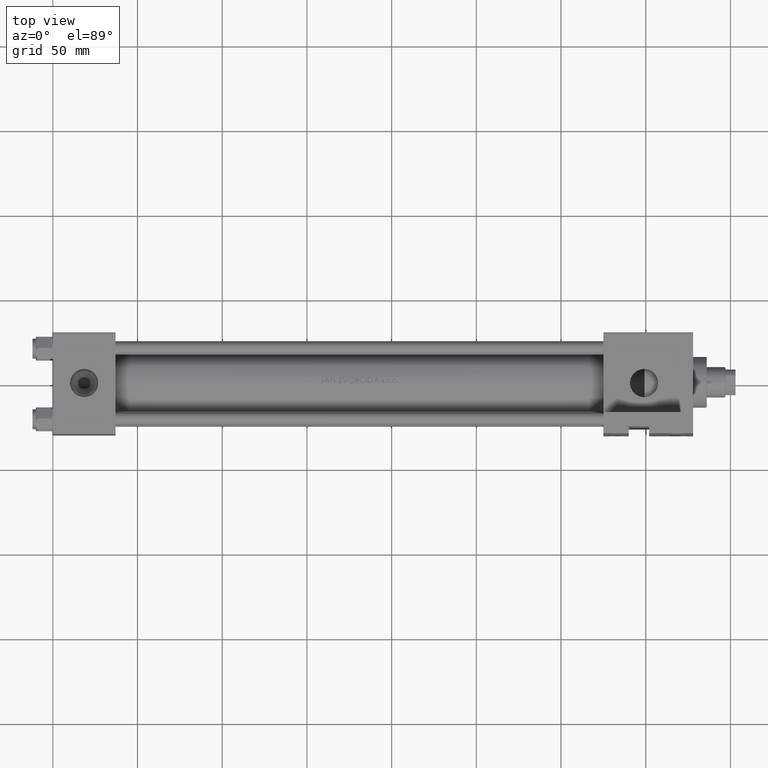
[diagram: clean part render]
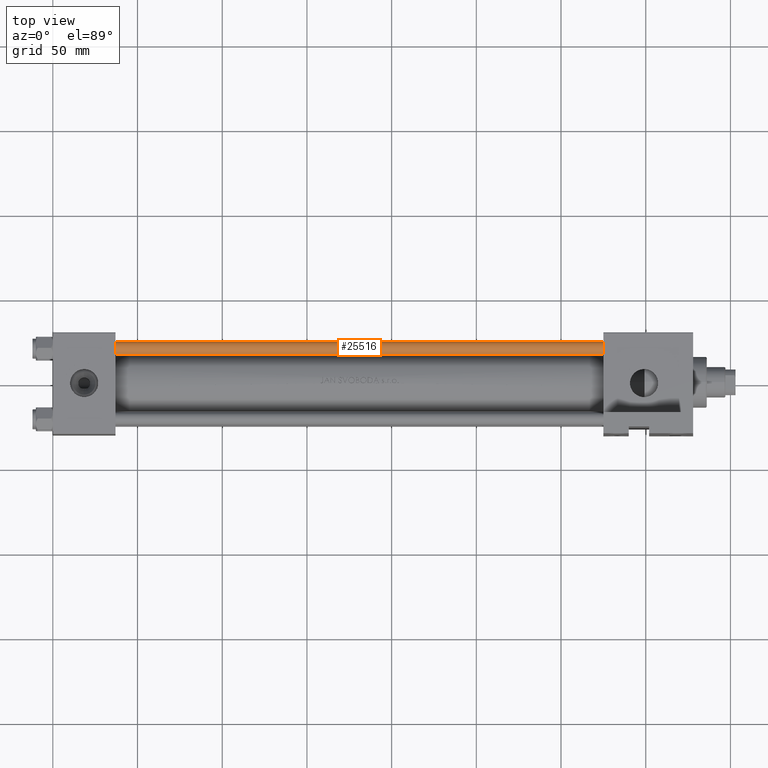
[diagram: same view with one face highlighted and labeled with its STEP entity id]
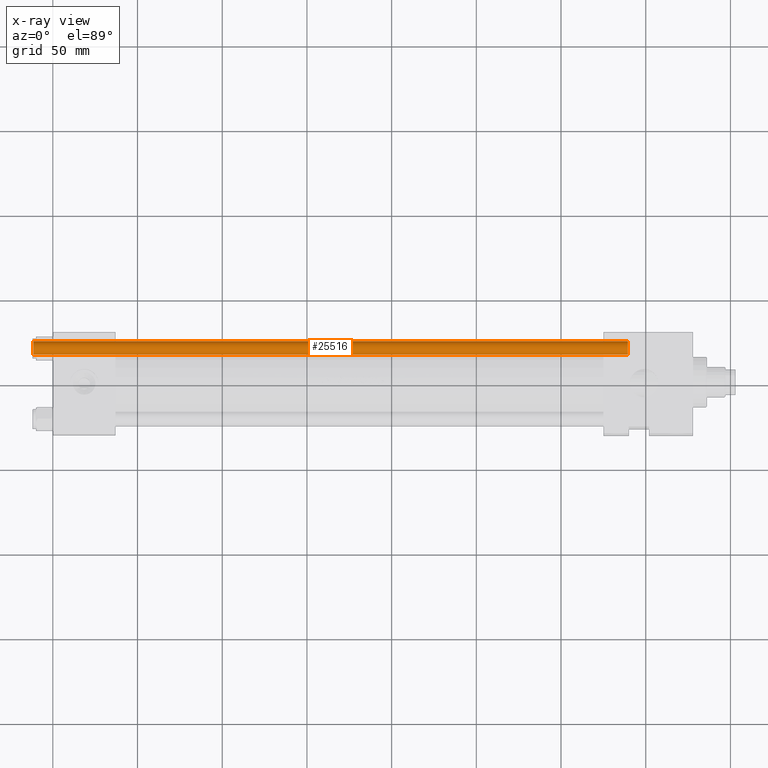
[diagram: x-ray of the same camera — body ghosted, the highlighted face saturated]
A machine part, top view. The second image highlights one B-rep face of the part: STEP entity #25516.
The next image is the same camera in x-ray: the body ghosted, the highlighted face saturated — about 0% of this face is hidden behind the body in this view.
In plain terms, the highlighted cylindrical surface (edge-blend (fillet) strip) has radius 4 mm, axis along (1, -0, 0).
Its self-contained STEP definition (entity closure, byte-faithful):
#465 = VERTEX_POINT ( 'NONE', #15069 ) ;
#751 = VECTOR ( 'NONE', #25468, 1000.000000000000000 ) ;
#2549 = CARTESIAN_POINT ( 'NONE',  ( -4.000000000000000000, 0.000000000000000000, 0.5000000000000004441 ) ) ;
#4012 = CARTESIAN_POINT ( 'NONE',  ( -4.000000000000000000, 0.000000000000000000, 351.5000000000000000 ) ) ;
#4155 = ORIENTED_EDGE ( 'NONE', *, *, #42831, .F. ) ;
#4201 = EDGE_CURVE ( 'NONE', #12713, #23359, #42438, .T. ) ;
#5007 = CARTESIAN_POINT ( 'NONE',  ( 0.000000000000000000, 0.000000000000000000, 351.5000000000000000 ) ) ;
#7141 = CARTESIAN_POINT ( 'NONE',  ( 4.000000000000000000, 4.898587196589412829E-16, 352.0000000000000000 ) ) ;
#8432 = CARTESIAN_POINT ( 'NONE',  ( 0.000000000000000000, 0.000000000000000000, 352.0000000000000000 ) ) ;
#10399 = ORIENTED_EDGE ( 'NONE', *, *, #17729, .T. ) ;
#12713 = VERTEX_POINT ( 'NONE', #17008 ) ;
#14037 = DIRECTION ( 'NONE',  ( 1.000000000000000000, 0.000000000000000000, 0.000000000000000000 ) ) ;
#15069 = CARTESIAN_POINT ( 'NONE',  ( 4.000000000000000000, 4.898587196589412829E-16, 0.5000000000000004441 ) ) ;
#17008 = CARTESIAN_POINT ( 'NONE',  ( 4.000000000000000000, 4.898587196589412829E-16, 351.5000000000000000 ) ) ;
#17729 = EDGE_CURVE ( 'NONE', #23359, #43436, #47889, .T. ) ;
#19775 = DIRECTION ( 'NONE',  ( -1.000000000000000000, 0.000000000000000000, 0.000000000000000000 ) ) ;
#20014 = DIRECTION ( 'NONE',  ( -0.000000000000000000, -0.000000000000000000, -1.000000000000000000 ) ) ;
#21530 = CARTESIAN_POINT ( 'NONE',  ( -4.000000000000000000, 0.000000000000000000, 352.0000000000000000 ) ) ;
#21753 = VECTOR ( 'NONE', #30066, 1000.000000000000000 ) ;
#23359 = VERTEX_POINT ( 'NONE', #4012 ) ;
#23710 = CYLINDRICAL_SURFACE ( 'NONE', #32164, 4.000000000000000000 ) ;
#25468 = DIRECTION ( 'NONE',  ( -0.000000000000000000, -0.000000000000000000, -1.000000000000000000 ) ) ;
#25516 = ADVANCED_FACE ( 'NONE', ( #30622 ), #23710, .T. ) ;
#29218 = ORIENTED_EDGE ( 'NONE', *, *, #4201, .T. ) ;
#30066 = DIRECTION ( 'NONE',  ( -0.000000000000000000, -0.000000000000000000, -1.000000000000000000 ) ) ;
#30511 = ORIENTED_EDGE ( 'NONE', *, *, #48431, .T. ) ;
#30622 = FACE_OUTER_BOUND ( 'NONE', #38589, .T. ) ;
#32052 = CIRCLE ( 'NONE', #34515, 4.000000000000000000 ) ;
#32164 = AXIS2_PLACEMENT_3D ( 'NONE', #8432, #20014, #19775 ) ;
#32275 = DIRECTION ( 'NONE',  ( -0.000000000000000000, -0.000000000000000000, 1.000000000000000000 ) ) ;
#34515 = AXIS2_PLACEMENT_3D ( 'NONE', #47062, #32275, #14037 ) ;
#38589 = EDGE_LOOP ( 'NONE', ( #4155, #29218, #10399, #30511 ) ) ;
#40901 = LINE ( 'NONE', #7141, #21753 ) ;
#41988 = DIRECTION ( 'NONE',  ( 1.000000000000000000, 0.000000000000000000, 0.000000000000000000 ) ) ;
#42438 = CIRCLE ( 'NONE', #47939, 4.000000000000000000 ) ;
#42831 = EDGE_CURVE ( 'NONE', #12713, #465, #40901, .T. ) ;
#43436 = VERTEX_POINT ( 'NONE', #2549 ) ;
#45689 = DIRECTION ( 'NONE',  ( 0.000000000000000000, 0.000000000000000000, -1.000000000000000000 ) ) ;
#47062 = CARTESIAN_POINT ( 'NONE',  ( 0.000000000000000000, 0.000000000000000000, 0.5000000000000004441 ) ) ;
#47889 = LINE ( 'NONE', #21530, #751 ) ;
#47939 = AXIS2_PLACEMENT_3D ( 'NONE', #5007, #45689, #41988 ) ;
#48431 = EDGE_CURVE ( 'NONE', #43436, #465, #32052, .T. ) ;